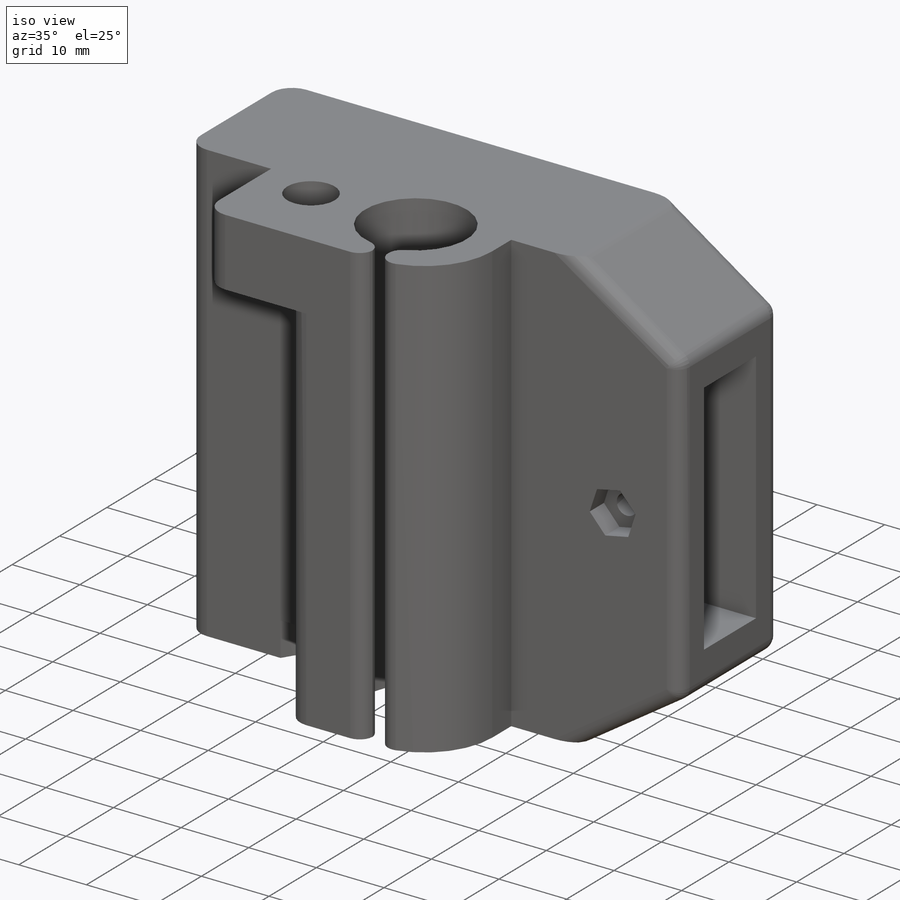
[diagram: iso view]
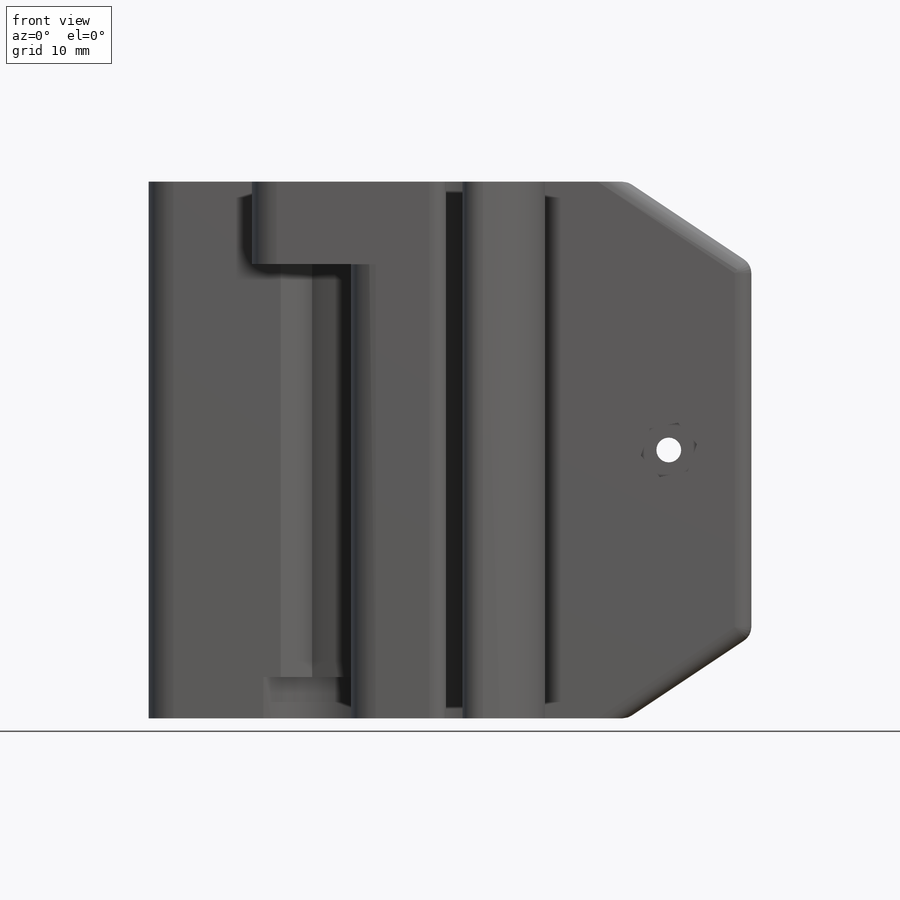
[diagram: front view]
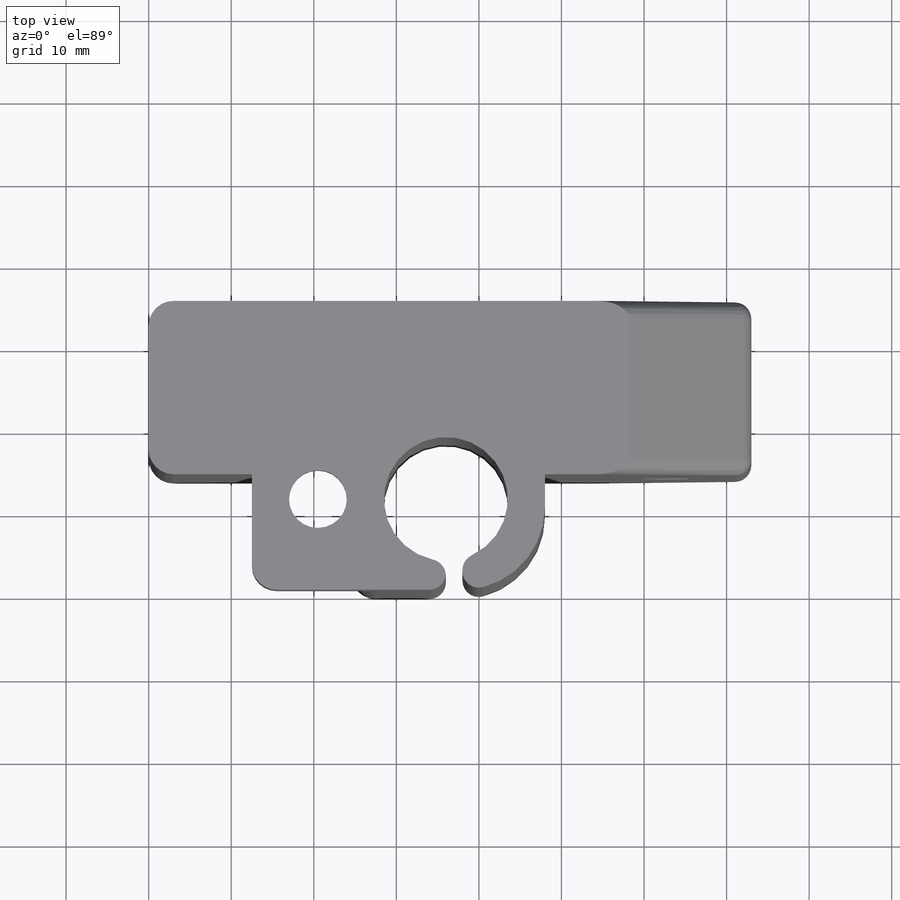
[diagram: top view]
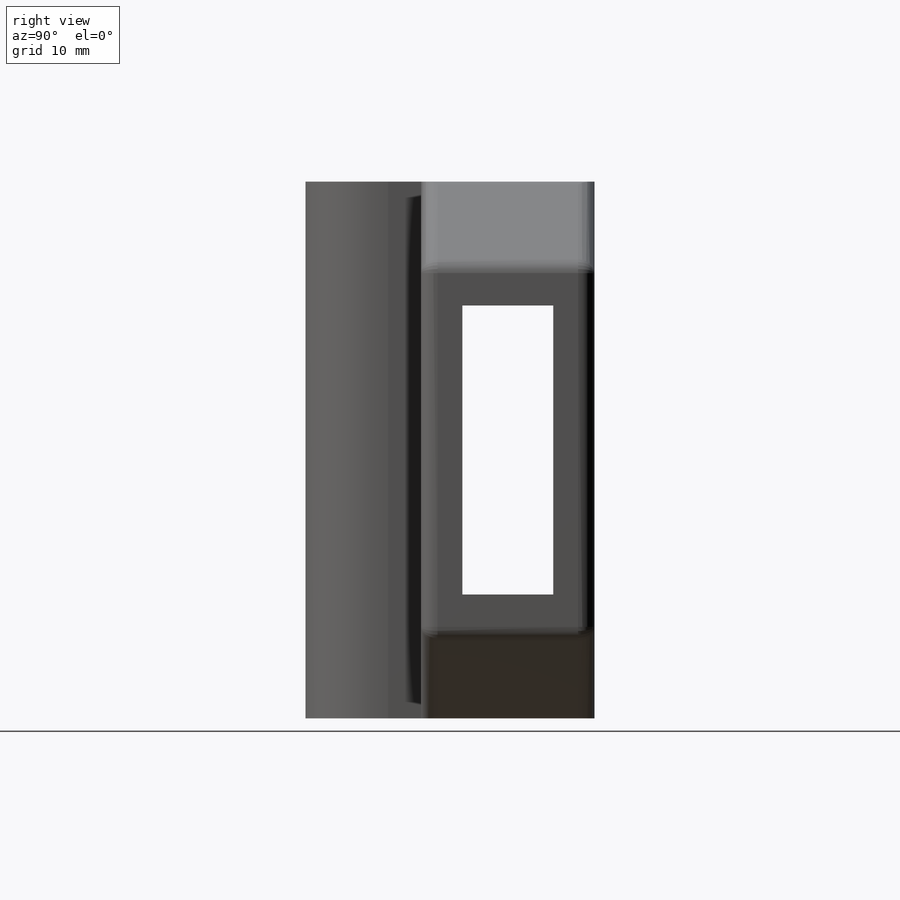
[diagram: right view]
SOLIDWORKS PART (.sldprt)
format: sldprt  version: not decoded by parser v0  size: 460,800 bytes
history: native  units: mm
features: sketch x15, cut_extrude x13, fillet x4, extrude x2, material x1 (+13 scaffold rows collapsed)
feature tree (48):
  scaffold x13  (default folders/planes/origin — collapsed)
  material  "Material <not specified>"
  sketch  "Sketch1"  dims[D1=48.0mm D2=35.0mm]
  extrude  "Boss-Extrude1"  Depth=65mm
  sketch  "Sketch2"  dims[c1.D1=15.0mm c1.D5=7.0mm c1.D6=10.0mm c1.D2=11.0mm c1.D3=12.0mm c1.D4=11.0mm c2.D6=15.5mm c2.D3=12.0mm c3.D6=15.5mm c3.D3=12.0mm]
  cut_extrude  "Cut-Extrude1"  [1 undecoded]
  sketch  "Sketch3"  dims[c1.D1=~16.306052mm c1.D2=~16.306229mm c2.D1=21.0mm]
  cut_extrude  "Cut-Extrude2"  Depth=12.5mm
  sketch  "Sketch4"  dims[D1=10.0mm]
  cut_extrude  "Cut-Extrude3"  Depth=12mm
  sketch  "Sketch5"  dims[D1=10.2mm]
  cut_extrude  "Cut-Extrude4"  Depth=60mm
  sketch  "Sketch6"  dims[D1=14.5mm]
  cut_extrude  "Cut-Extrude5"  Depth=5mm
  sketch  "Sketch7"  dims[D1=5.0mm D2=5.0mm D3=15.0mm D4=15.0mm]
  cut_extrude  "Cut-Extrude6"  [1 undecoded]
  sketch  "Sketch8"  dims[D1=8.0mm D2=8.0mm D3=7.0mm D4=10.5mm D5=10.5mm D6=7.0mm]
  cut_extrude  "Cut-Extrude7"  Depth=30mm
  sketch  "Sketch9"  dims[D1=15.0mm D2=5.0mm D3=5.0mm D4=15.0mm]
  cut_extrude  "Cut-Extrude8"  Depth=10mm
  fillet  "Fillet1"  Radius=3mm
  sketch  "Sketch11"  dims[D1=21.0mm]
  extrude  "Boss-Extrude2"  Depth=25mm
  fillet  "Fillet2"  Radius=10mm
  sketch  "Sketch12"  dims[D1=2.0mm]
  cut_extrude  "Cut-Extrude9"  [1 undecoded]
  fillet  "Fillet3"  Radius=2mm
  sketch  "Sketch13"  dims[D1=5.0mm D2=5.0mm D3=15.0mm D4=15.0mm]
  cut_extrude  "Cut-Extrude10"  [1 undecoded]
  sketch  "Sketch14"  dims[D1=15.0mm D2=10.0mm D3=10.0mm D4=15.0mm]
  cut_extrude  "Cut-Extrude11"  [1 undecoded]
  sketch  "Sketch16"  dims[D3=3.0mm D1=32.5mm D2=10.0mm]
  cut_extrude  "Cut-Extrude13"  [1 undecoded]
  sketch  "Sketch17"  dims[D1=6.0mm]
  cut_extrude  "Cut-Extrude14"  Depth=3mm
  fillet  "Fillet4"  Radius=2mm
decode coverage: 28 of 34 modeling features carry decoded parameters
note: ~ marks probable driven/reference dimensions
note: 6 parameter values undecoded
summary: no parameter record found for 6 features
note: suppression state not decoded; provenance and decode notes live in map.json
